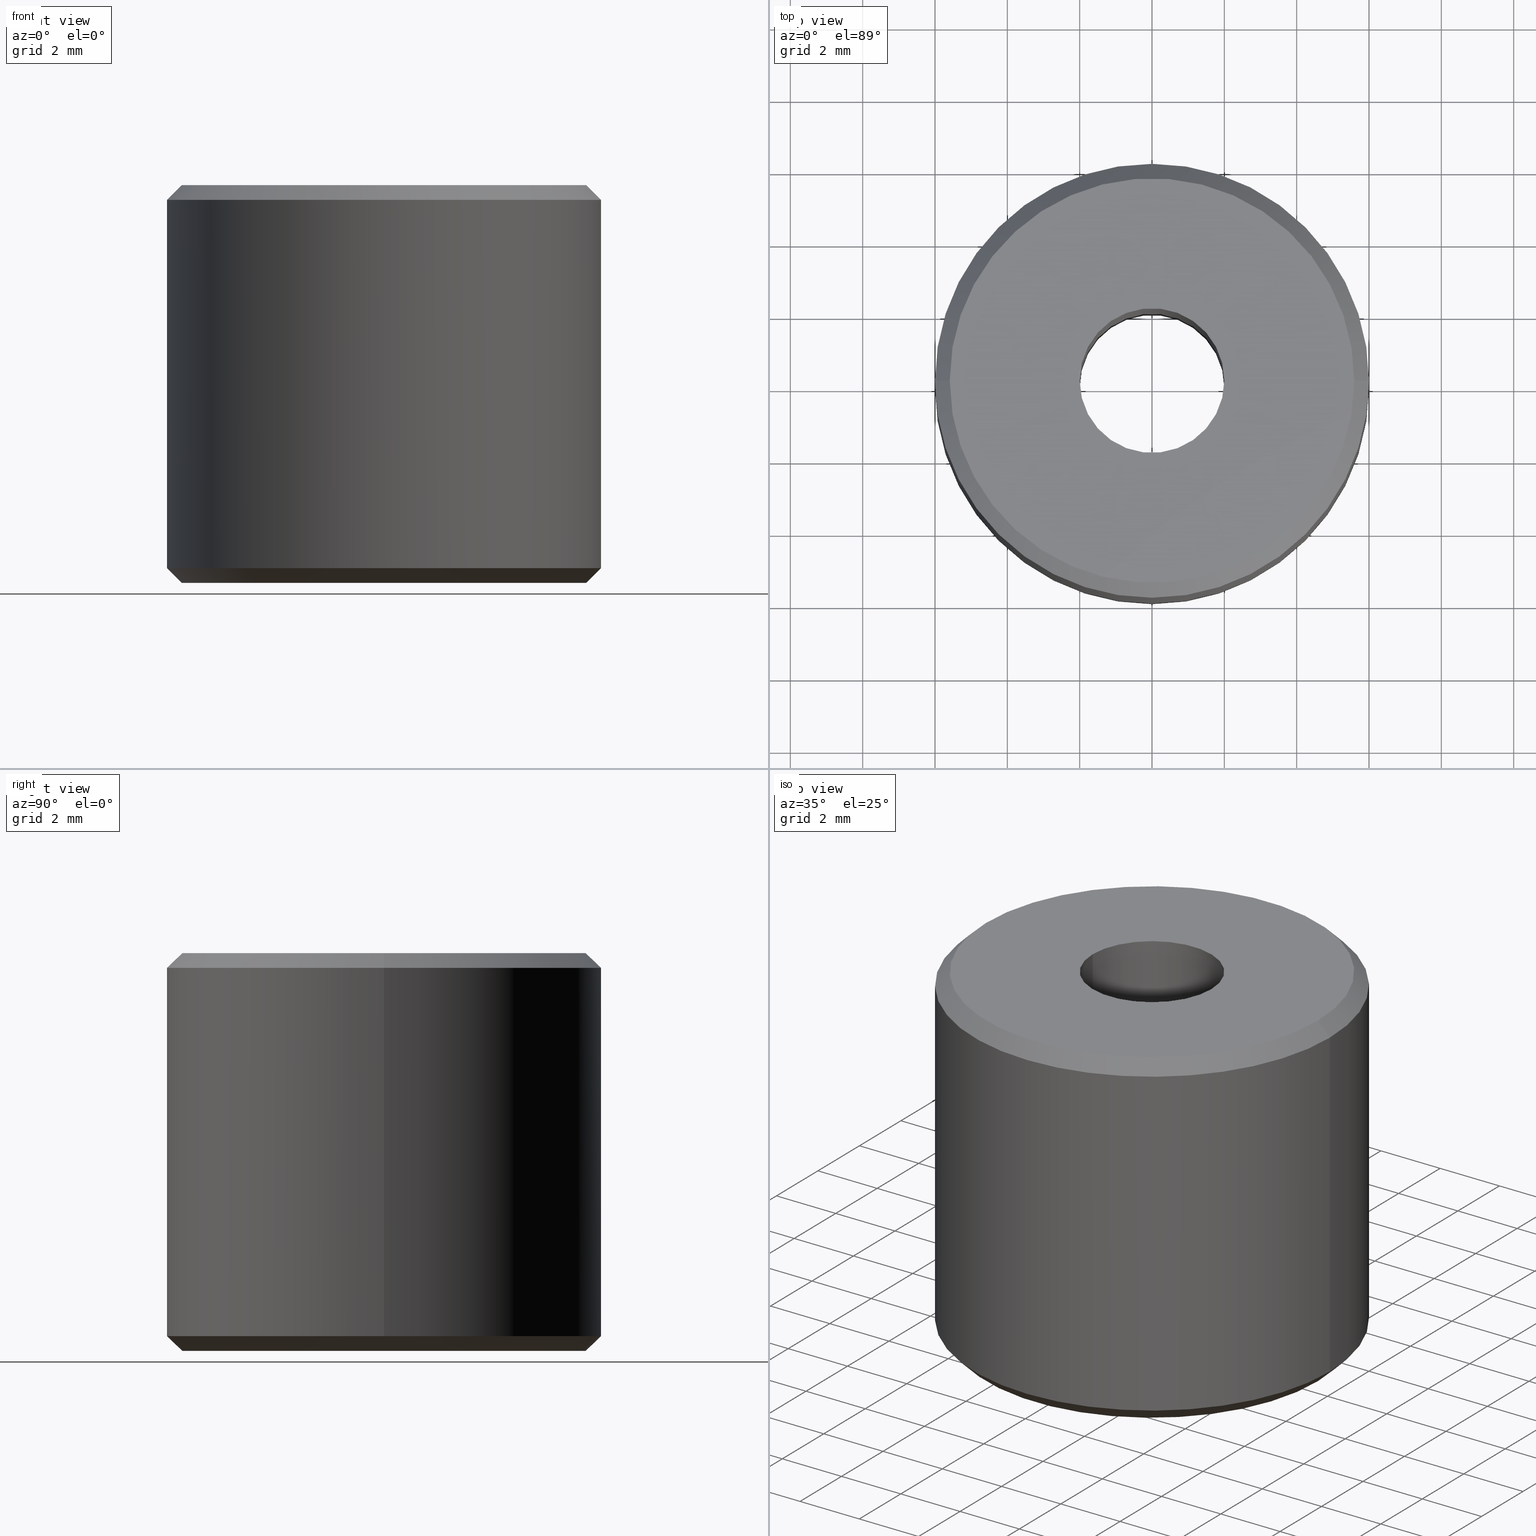
[diagram: canonical four-view strip — front | top / right | iso, engineering-drawing reading convention]
A machine part, canonical four-view strip (front | top / right | iso — engineering-drawing reading convention). The complete STEP part file that produces these views, byte-faithful:
ISO-10303-21;
HEADER;
FILE_DESCRIPTION (( 'STEP AP203' ),
    '1' );
FILE_NAME ('UM ER 8 M.STEP',
    '2019-04-22T08:48:45',
    ( '' ),
    ( '' ),
    'SwSTEP 2.0',
    'SolidWorks 2014',
    '' );
FILE_SCHEMA (( 'CONFIG_CONTROL_DESIGN' ));
ENDSEC;

DATA;
#1 = PERSON_AND_ORGANIZATION ( #21, #81 ) ;
#2 = ORIENTED_EDGE ( 'NONE', *, *, #161, .F. ) ;
#3 = COORDINATED_UNIVERSAL_TIME_OFFSET ( 5, 30, .AHEAD. ) ;
#4 = ORIENTED_EDGE ( 'NONE', *, *, #283, .F. ) ;
#5 = PERSON_AND_ORGANIZATION_ROLE ( 'creator' ) ;
#6 = CYLINDRICAL_SURFACE ( 'NONE', #76, 5.999999999999957400 ) ;
#7 = CARTESIAN_POINT ( 'NONE',  ( 0.0000000000000000000, 0.1111111111113758500, 2.255140518769849200E-013 ) ) ;
#8 = CC_DESIGN_PERSON_AND_ORGANIZATION_ASSIGNMENT ( #205, #5, ( #309 ) ) ;
#9 = ORIENTED_EDGE ( 'NONE', *, *, #254, .T. ) ;
#10 = CARTESIAN_POINT ( 'NONE',  ( 5.999999999999958300, 0.1111111111113758500, 0.4074074074076027300 ) ) ;
#11 = LOCAL_TIME ( 14, 18, 45.00000000000000000, #89 ) ;
#12 = DIRECTION ( 'NONE',  ( -0.0000000000000000000, -0.0000000000000000000, 1.000000000000000000 ) ) ;
#13 = ORIENTED_EDGE ( 'NONE', *, *, #268, .T. ) ;
#14 = ORIENTED_EDGE ( 'NONE', *, *, #251, .T. ) ;
#15 = AXIS2_PLACEMENT_3D ( 'NONE', #292, #231, #308 ) ;
#16 = CIRCLE ( 'NONE', #332, 5.592592592592525900 ) ;
#17 = DIRECTION ( 'NONE',  ( 1.000000000000000000, 0.0000000000000000000, 0.0000000000000000000 ) ) ;
#18 = CARTESIAN_POINT ( 'NONE',  ( 0.0000000000000000000, 5.311472910980680100E-015, 11.00000000000022400 ) ) ;
#19 = EDGE_CURVE ( 'NONE', #286, #39, #337, .T. ) ;
#20 = VERTEX_POINT ( 'NONE', #235 ) ;
#21 = PERSON ( 'UNSPECIFIED', 'UNSPECIFIED', 'UNSPECIFIED', ('UNSPECIFIED'), ('UNSPECIFIED'), ('UNSPECIFIED') ) ;
#22 = EDGE_CURVE ( 'NONE', #114, #288, #195, .T. ) ;
#23 = COORDINATED_UNIVERSAL_TIME_OFFSET ( 5, 30, .AHEAD. ) ;
#24 = CARTESIAN_POINT ( 'NONE',  ( 0.0000000000000000000, 0.1111111111113758500, 2.255140518769849200E-013 ) ) ;
#25 = CC_DESIGN_DATE_AND_TIME_ASSIGNMENT ( #267, #306, ( #309 ) ) ;
#26 = VECTOR ( 'NONE', #225, 1000.000000000000000 ) ;
#27 = DIRECTION ( 'NONE',  ( 0.0000000000000000000, 0.0000000000000000000, 1.000000000000000000 ) ) ;
#28 = ORIENTED_EDGE ( 'NONE', *, *, #143, .F. ) ;
#29 = EDGE_LOOP ( 'NONE', ( #176, #321, #136, #217 ) ) ;
#30 = APPLICATION_CONTEXT ( 'configuration controlled 3d designs of mechanical parts and assemblies' ) ;
#31 = DIRECTION ( 'NONE',  ( -0.0000000000000000000, -0.0000000000000000000, 1.000000000000000000 ) ) ;
#32 = VECTOR ( 'NONE', #98, 1000.000000000000000 ) ;
#33 = CARTESIAN_POINT ( 'NONE',  ( -5.999999999999956500, 0.1111111111113765900, 10.59259259259270700 ) ) ;
#34 = ADVANCED_FACE ( 'NONE', ( #62, #56 ), #45, .F. ) ;
#35 = AXIS2_PLACEMENT_3D ( 'NONE', #91, #202, #64 ) ;
#36 = CARTESIAN_POINT ( 'NONE',  ( 0.0000000000000000000, 0.1111111111113758500, 2.255140518769849200E-013 ) ) ;
#37 = APPROVAL_STATUS ( 'not_yet_approved' ) ;
#38 = FACE_OUTER_BOUND ( 'NONE', #296, .T. ) ;
#39 = VERTEX_POINT ( 'NONE', #10 ) ;
#40 = ADVANCED_FACE ( 'NONE', ( #116, #331 ), #146, .F. ) ;
#41 = PERSON_AND_ORGANIZATION ( #21, #81 ) ;
#42 = DIRECTION ( 'NONE',  ( -0.0000000000000000000, -0.0000000000000000000, 1.000000000000000000 ) ) ;
#43 = EDGE_CURVE ( 'NONE', #206, #39, #44, .T. ) ;
#44 = LINE ( 'NONE', #338, #269 ) ;
#45 = PLANE ( 'NONE',  #165 ) ;
#46 = EDGE_LOOP ( 'NONE', ( #274, #234, #9, #58 ) ) ;
#47 = CARTESIAN_POINT ( 'NONE',  ( 0.0000000000000000000, 0.1111111111113758500, 10.59259259259270700 ) ) ;
#48 = CARTESIAN_POINT ( 'NONE',  ( -5.592592592592581000, 0.1111111111113765600, 2.255140518769849200E-013 ) ) ;
#49 = CARTESIAN_POINT ( 'NONE',  ( 0.0000000000000000000, 0.1111111111113758500, 17.60149317175943700 ) ) ;
#50 = LINE ( 'NONE', #128, #127 ) ;
#51 = DIRECTION ( 'NONE',  ( -0.0000000000000000000, -0.0000000000000000000, 1.000000000000000000 ) ) ;
#52 = ORIENTED_EDGE ( 'NONE', *, *, #43, .F. ) ;
#53 = PRODUCT_DEFINITION_FORMATION_WITH_SPECIFIED_SOURCE ( 'ANY', '', #129, .NOT_KNOWN. ) ;
#54 = DIRECTION ( 'NONE',  ( 1.000000000000000000, 0.0000000000000000000, 0.0000000000000000000 ) ) ;
#55 = COORDINATED_UNIVERSAL_TIME_OFFSET ( 5, 30, .AHEAD. ) ;
#56 = FACE_BOUND ( 'NONE', #339, .T. ) ;
#57 = AXIS2_PLACEMENT_3D ( 'NONE', #36, #166, #169 ) ;
#58 = ORIENTED_EDGE ( 'NONE', *, *, #82, .T. ) ;
#59 = CARTESIAN_POINT ( 'NONE',  ( 0.0000000000000000000, 0.0000000000000000000, 0.0000000000000000000 ) ) ;
#60 = CONICAL_SURFACE ( 'NONE', #35, 5.999999999999958300, 0.7853981633974482800 ) ;
#61 = LOCAL_TIME ( 14, 18, 45.00000000000000000, #131 ) ;
#62 = FACE_OUTER_BOUND ( 'NONE', #240, .T. ) ;
#63 = EDGE_CURVE ( 'NONE', #148, #198, #188, .T. ) ;
#64 = DIRECTION ( 'NONE',  ( 1.000000000000000000, 0.0000000000000000000, 0.0000000000000000000 ) ) ;
#65 = PERSON_AND_ORGANIZATION_ROLE ( 'design_supplier' ) ;
#66 = CARTESIAN_POINT ( 'NONE',  ( 1.999999999999958500, 0.1111111111113758500, 2.255140518769849200E-013 ) ) ;
#67 = APPROVAL ( #37, 'UNSPECIFIED' ) ;
#68 = EDGE_CURVE ( 'NONE', #263, #288, #324, .T. ) ;
#69 = ORIENTED_EDGE ( 'NONE', *, *, #161, .T. ) ;
#70 = ORIENTED_EDGE ( 'NONE', *, *, #336, .T. ) ;
#71 = DIRECTION ( 'NONE',  ( -0.0000000000000000000, -0.0000000000000000000, 1.000000000000000000 ) ) ;
#72 = DIRECTION ( 'NONE',  ( 0.7071067811865474600, 0.0000000000000000000, 0.7071067811865475700 ) ) ;
#73 = MANIFOLD_SOLID_BREP ( 'Revolve1', #227 ) ;
#74 = APPROVAL_DATE_TIME ( #138, #192 ) ;
#75 = DIRECTION ( 'NONE',  ( 0.0000000000000000000, -0.0000000000000000000, 1.000000000000000000 ) ) ;
#76 = AXIS2_PLACEMENT_3D ( 'NONE', #181, #214, #237 ) ;
#77 = DIRECTION ( 'NONE',  ( -0.0000000000000000000, -0.0000000000000000000, 1.000000000000000000 ) ) ;
#78 = DIRECTION ( 'NONE',  ( -0.0000000000000000000, -0.0000000000000000000, 1.000000000000000000 ) ) ;
#79 = DIRECTION ( 'NONE',  ( -1.000000000000000000, 0.0000000000000000000, 0.0000000000000000000 ) ) ;
#80 = CARTESIAN_POINT ( 'NONE',  ( 5.999999999999956500, 0.1111111111113758500, 10.59259259259270700 ) ) ;
#81 = ORGANIZATION ( 'UNSPECIFIED', 'UNSPECIFIED', '' ) ;
#82 = EDGE_CURVE ( 'NONE', #198, #148, #257, .T. ) ;
#83 = APPROVAL_PERSON_ORGANIZATION ( #147, #192, #175 ) ;
#84 = ORIENTED_EDGE ( 'NONE', *, *, #254, .F. ) ;
#85 = CONICAL_SURFACE ( 'NONE', #349, 5.592592592592525900, 0.7853981633973461400 ) ;
#86 = CC_DESIGN_APPROVAL ( #67, ( #53 ) ) ;
#87 = EDGE_CURVE ( 'NONE', #20, #148, #178, .T. ) ;
#88 = ADVANCED_FACE ( 'NONE', ( #243 ), #101, .F. ) ;
#89 = COORDINATED_UNIVERSAL_TIME_OFFSET ( 5, 30, .AHEAD. ) ;
#90 = APPLICATION_CONTEXT ( 'configuration controlled 3d designs of mechanical parts and assemblies' ) ;
#91 = CARTESIAN_POINT ( 'NONE',  ( 0.0000000000000000000, 0.1111111111113758500, 0.4074074074076027300 ) ) ;
#92 = ORIENTED_EDGE ( 'NONE', *, *, #336, .F. ) ;
#93 = DIRECTION ( 'NONE',  ( -0.0000000000000000000, -0.0000000000000000000, 1.000000000000000000 ) ) ;
#94 = FACE_OUTER_BOUND ( 'NONE', #196, .T. ) ;
#95 = AXIS2_PLACEMENT_3D ( 'NONE', #7, #31, #140 ) ;
#96 = CARTESIAN_POINT ( 'NONE',  ( 1.999999999999957100, 0.1111111111113758500, 11.00000000000022600 ) ) ;
#97 = ADVANCED_FACE ( 'NONE', ( #315 ), #158, .T. ) ;
#98 = DIRECTION ( 'NONE',  ( -0.0000000000000000000, -0.0000000000000000000, 1.000000000000000000 ) ) ;
#99 = EDGE_CURVE ( 'NONE', #105, #114, #236, .T. ) ;
#100 = DIRECTION ( 'NONE',  ( -0.0000000000000000000, -0.0000000000000000000, 1.000000000000000000 ) ) ;
#101 = CYLINDRICAL_SURFACE ( 'NONE', #297, 1.999999999999957600 ) ;
#102 = DIRECTION ( 'NONE',  ( 1.000000000000000000, 0.0000000000000000000, 0.0000000000000000000 ) ) ;
#103 = DIRECTION ( 'NONE',  ( 0.0000000000000000000, 0.0000000000000000000, -1.000000000000000000 ) ) ;
#104 = CC_DESIGN_PERSON_AND_ORGANIZATION_ASSIGNMENT ( #41, #199, ( #53 ) ) ;
#105 = VERTEX_POINT ( 'NONE', #186 ) ;
#106 = DIRECTION ( 'NONE',  ( 1.000000000000000000, 0.0000000000000000000, 0.0000000000000000000 ) ) ;
#107 = FACE_OUTER_BOUND ( 'NONE', #29, .T. ) ;
#108 = CARTESIAN_POINT ( 'NONE',  ( -5.999999999999957400, 0.1111111111113765900, 17.60149317175943700 ) ) ;
#109 = AXIS2_PLACEMENT_3D ( 'NONE', #238, #51, #106 ) ;
#110 = VECTOR ( 'NONE', #266, 1000.000000000000000 ) ;
#111 = EDGE_LOOP ( 'NONE', ( #241, #279 ) ) ;
#112 =( NAMED_UNIT ( * ) SI_UNIT ( $, .STERADIAN. ) SOLID_ANGLE_UNIT ( ) );
#113 = APPROVAL_DATE_TIME ( #187, #67 ) ;
#114 = VERTEX_POINT ( 'NONE', #150 ) ;
#115 = AXIS2_PLACEMENT_3D ( 'NONE', #312, #71, #177 ) ;
#116 = FACE_BOUND ( 'NONE', #111, .T. ) ;
#117 = CARTESIAN_POINT ( 'NONE',  ( 5.592592592592581000, 0.1111111111113758500, 2.255140518769849200E-013 ) ) ;
#118 = ORIENTED_EDGE ( 'NONE', *, *, #99, .T. ) ;
#119 = APPROVAL_STATUS ( 'not_yet_approved' ) ;
#120 = CIRCLE ( 'NONE', #109, 5.999999999999956500 ) ;
#121 = CC_DESIGN_PERSON_AND_ORGANIZATION_ASSIGNMENT ( #322, #65, ( #53 ) ) ;
#122 = APPROVAL_PERSON_ORGANIZATION ( #194, #67, #170 ) ;
#123 = VECTOR ( 'NONE', #340, 1000.000000000000000 ) ;
#124 = DIRECTION ( 'NONE',  ( 1.000000000000000000, 0.0000000000000000000, 0.0000000000000000000 ) ) ;
#125 = CARTESIAN_POINT ( 'NONE',  ( 0.0000000000000000000, 0.0000000000000000000, 2.261565403265023200E-013 ) ) ;
#126 = AXIS2_PLACEMENT_3D ( 'NONE', #24, #134, #159 ) ;
#127 = VECTOR ( 'NONE', #290, 1000.000000000000000 ) ;
#128 = CARTESIAN_POINT ( 'NONE',  ( -5.592592592592525900, 0.1111111111113758500, 11.00000000000022200 ) ) ;
#129 = PRODUCT ( 'UM ER 8 M', 'UM ER 8 M', '', ( #193 ) ) ;
#130 = CARTESIAN_POINT ( 'NONE',  ( 0.0000000000000000000, 0.1111111111113758500, 11.00000000000022200 ) ) ;
#131 = COORDINATED_UNIVERSAL_TIME_OFFSET ( 5, 30, .AHEAD. ) ;
#132 = EDGE_LOOP ( 'NONE', ( #28, #185, #13, #301 ) ) ;
#133 = ORIENTED_EDGE ( 'NONE', *, *, #323, .F. ) ;
#134 = DIRECTION ( 'NONE',  ( -0.0000000000000000000, -0.0000000000000000000, 1.000000000000000000 ) ) ;
#135 = SECURITY_CLASSIFICATION ( '', '', #229 ) ;
#136 = ORIENTED_EDGE ( 'NONE', *, *, #304, .T. ) ;
#137 = ORIENTED_EDGE ( 'NONE', *, *, #300, .T. ) ;
#138 = DATE_AND_TIME ( #221, #285 ) ;
#139 = ADVANCED_FACE ( 'NONE', ( #107 ), #298, .T. ) ;
#140 = DIRECTION ( 'NONE',  ( 1.000000000000000000, 0.0000000000000000000, 0.0000000000000000000 ) ) ;
#141 = AXIS2_PLACEMENT_3D ( 'NONE', #153, #261, #293 ) ;
#142 = CARTESIAN_POINT ( 'NONE',  ( 1.999999999999957600, 0.1111111111113758500, 17.60149317175943700 ) ) ;
#143 = EDGE_CURVE ( 'NONE', #114, #105, #16, .T. ) ;
#144 = SHAPE_DEFINITION_REPRESENTATION ( #245, #299 ) ;
#145 = APPROVAL_STATUS ( 'not_yet_approved' ) ;
#146 = PLANE ( 'NONE',  #210 ) ;
#147 = PERSON_AND_ORGANIZATION ( #21, #81 ) ;
#148 = VERTEX_POINT ( 'NONE', #183 ) ;
#149 = CIRCLE ( 'NONE', #15, 5.592592592592581000 ) ;
#150 = CARTESIAN_POINT ( 'NONE',  ( 5.592592592592525900, 0.1111111111113765600, 11.00000000000022200 ) ) ;
#151 = CARTESIAN_POINT ( 'NONE',  ( 0.0000000000000000000, 0.1111111111113758500, 11.00000000000022200 ) ) ;
#152 = ADVANCED_FACE ( 'NONE', ( #168 ), #85, .T. ) ;
#153 = CARTESIAN_POINT ( 'NONE',  ( 0.0000000000000000000, 0.1111111111113758500, 0.4074074074076027300 ) ) ;
#154 = CC_DESIGN_PERSON_AND_ORGANIZATION_ASSIGNMENT ( #249, #277, ( #135 ) ) ;
#155 = DIRECTION ( 'NONE',  ( 1.000000000000000000, 0.0000000000000000000, 0.0000000000000000000 ) ) ;
#156 = EDGE_LOOP ( 'NONE', ( #118, #208 ) ) ;
#157 = EDGE_LOOP ( 'NONE', ( #14, #70, #4, #52 ) ) ;
#158 = CONICAL_SURFACE ( 'NONE', #278, 5.999999999999958300, 0.7853981633974482800 ) ;
#159 = DIRECTION ( 'NONE',  ( 1.000000000000000000, 0.0000000000000000000, 0.0000000000000000000 ) ) ;
#160 = AXIS2_PLACEMENT_3D ( 'NONE', #49, #78, #54 ) ;
#161 = EDGE_CURVE ( 'NONE', #162, #206, #149, .T. ) ;
#162 = VERTEX_POINT ( 'NONE', #48 ) ;
#163 = UNCERTAINTY_MEASURE_WITH_UNIT (LENGTH_MEASURE( 1.000000000000000100E-005 ), #302, 'distance_accuracy_value', 'NONE');
#164 = DIRECTION ( 'NONE',  ( 1.000000000000000000, 0.0000000000000000000, 0.0000000000000000000 ) ) ;
#165 = AXIS2_PLACEMENT_3D ( 'NONE', #125, #75, #209 ) ;
#166 = DIRECTION ( 'NONE',  ( -0.0000000000000000000, -0.0000000000000000000, 1.000000000000000000 ) ) ;
#167 = ADVANCED_FACE ( 'NONE', ( #307 ), #6, .T. ) ;
#168 = FACE_OUTER_BOUND ( 'NONE', #132, .T. ) ;
#169 = DIRECTION ( 'NONE',  ( 1.000000000000000000, 0.0000000000000000000, 0.0000000000000000000 ) ) ;
#170 = APPROVAL_ROLE ( '' ) ;
#171 = LINE ( 'NONE', #244, #26 ) ;
#172 = ORIENTED_EDGE ( 'NONE', *, *, #268, .F. ) ;
#173 = CC_DESIGN_DATE_AND_TIME_ASSIGNMENT ( #226, #310, ( #135 ) ) ;
#174 = EDGE_CURVE ( 'NONE', #275, #20, #252, .T. ) ;
#175 = APPROVAL_ROLE ( '' ) ;
#176 = ORIENTED_EDGE ( 'NONE', *, *, #22, .F. ) ;
#177 = DIRECTION ( 'NONE',  ( 1.000000000000000000, 0.0000000000000000000, 0.0000000000000000000 ) ) ;
#178 = LINE ( 'NONE', #180, #32 ) ;
#179 = CARTESIAN_POINT ( 'NONE',  ( 5.592592592592525900, 0.1111111111113765500, 11.00000000000022200 ) ) ;
#180 = CARTESIAN_POINT ( 'NONE',  ( -1.999999999999957600, 0.1111111111113761000, 17.60149317175943700 ) ) ;
#181 = CARTESIAN_POINT ( 'NONE',  ( 0.0000000000000000000, 0.1111111111113758500, 17.60149317175943700 ) ) ;
#182 = DIRECTION ( 'NONE',  ( -0.0000000000000000000, -0.0000000000000000000, 1.000000000000000000 ) ) ;
#183 = CARTESIAN_POINT ( 'NONE',  ( -1.999999999999957100, 0.1111111111113761000, 11.00000000000022600 ) ) ;
#184 = LINE ( 'NONE', #108, #246 ) ;
#185 = ORIENTED_EDGE ( 'NONE', *, *, #22, .T. ) ;
#186 = CARTESIAN_POINT ( 'NONE',  ( -5.592592592592525900, 0.1111111111113758500, 11.00000000000022200 ) ) ;
#187 = DATE_AND_TIME ( #255, #329 ) ;
#188 = CIRCLE ( 'NONE', #189, 1.999999999999957100 ) ;
#189 = AXIS2_PLACEMENT_3D ( 'NONE', #313, #211, #124 ) ;
#190 = LINE ( 'NONE', #318, #110 ) ;
#191 = EDGE_LOOP ( 'NONE', ( #311, #347, #137, #348 ) ) ;
#192 = APPROVAL ( #145, 'UNSPECIFIED' ) ;
#193 = MECHANICAL_CONTEXT ( 'NONE', #90, 'mechanical' ) ;
#194 = PERSON_AND_ORGANIZATION ( #21, #81 ) ;
#195 = LINE ( 'NONE', #179, #123 ) ;
#196 = EDGE_LOOP ( 'NONE', ( #92, #69, #294, #247 ) ) ;
#197 = ADVANCED_FACE ( 'NONE', ( #94 ), #60, .T. ) ;
#198 = VERTEX_POINT ( 'NONE', #96 ) ;
#199 = PERSON_AND_ORGANIZATION_ROLE ( 'creator' ) ;
#200 =( GEOMETRIC_REPRESENTATION_CONTEXT ( 3 ) GLOBAL_UNCERTAINTY_ASSIGNED_CONTEXT ( ( #163 ) ) GLOBAL_UNIT_ASSIGNED_CONTEXT ( ( #302, #303, #112 ) ) REPRESENTATION_CONTEXT ( 'NONE', 'WORKASPACE' ) );
#201 = CIRCLE ( 'NONE', #95, 5.592592592592581000 ) ;
#202 = DIRECTION ( 'NONE',  ( -0.0000000000000000000, -0.0000000000000000000, 1.000000000000000000 ) ) ;
#203 = APPLICATION_PROTOCOL_DEFINITION ( 'international standard', 'config_control_design', 1994, #30 ) ;
#204 = ORIENTED_EDGE ( 'NONE', *, *, #174, .T. ) ;
#205 = PERSON_AND_ORGANIZATION ( #21, #81 ) ;
#206 = VERTEX_POINT ( 'NONE', #117 ) ;
#207 = ORIENTED_EDGE ( 'NONE', *, *, #300, .F. ) ;
#208 = ORIENTED_EDGE ( 'NONE', *, *, #143, .T. ) ;
#209 = DIRECTION ( 'NONE',  ( 1.000000000000000000, 0.0000000000000000000, 0.0000000000000000000 ) ) ;
#210 = AXIS2_PLACEMENT_3D ( 'NONE', #18, #341, #258 ) ;
#211 = DIRECTION ( 'NONE',  ( -0.0000000000000000000, -0.0000000000000000000, 1.000000000000000000 ) ) ;
#212 = DIRECTION ( 'NONE',  ( -1.000000000000000000, 0.0000000000000000000, 0.0000000000000000000 ) ) ;
#213 = CARTESIAN_POINT ( 'NONE',  ( 0.0000000000000000000, 0.1111111111113758500, 0.4074074074076027300 ) ) ;
#214 = DIRECTION ( 'NONE',  ( -0.0000000000000000000, -0.0000000000000000000, 1.000000000000000000 ) ) ;
#215 = DIRECTION ( 'NONE',  ( -0.0000000000000000000, -0.0000000000000000000, 1.000000000000000000 ) ) ;
#216 = CC_DESIGN_APPROVAL ( #192, ( #135 ) ) ;
#217 = ORIENTED_EDGE ( 'NONE', *, *, #68, .T. ) ;
#218 = APPROVAL_PERSON_ORGANIZATION ( #281, #326, #232 ) ;
#219 = ORIENTED_EDGE ( 'NONE', *, *, #251, .F. ) ;
#220 = DESIGN_CONTEXT ( 'detailed design', #30, 'design' ) ;
#221 = CALENDAR_DATE ( 2019, 22, 4 ) ;
#222 = DIRECTION ( 'NONE',  ( -0.0000000000000000000, -0.0000000000000000000, 1.000000000000000000 ) ) ;
#223 = AXIS2_PLACEMENT_3D ( 'NONE', #328, #224, #325 ) ;
#224 = DIRECTION ( 'NONE',  ( -0.0000000000000000000, -0.0000000000000000000, 1.000000000000000000 ) ) ;
#225 = DIRECTION ( 'NONE',  ( -0.7071067811865474600, 8.659560562354931600E-017, 0.7071067811865475700 ) ) ;
#226 = DATE_AND_TIME ( #295, #11 ) ;
#227 = CLOSED_SHELL ( 'NONE', ( #97, #88, #152, #334, #167, #139, #40, #280, #34, #197 ) ) ;
#228 = AXIS2_PLACEMENT_3D ( 'NONE', #47, #42, #102 ) ;
#229 = SECURITY_CLASSIFICATION_LEVEL ( 'unclassified' ) ;
#230 = LOCAL_TIME ( 14, 18, 45.00000000000000000, #23 ) ;
#231 = DIRECTION ( 'NONE',  ( -0.0000000000000000000, -0.0000000000000000000, 1.000000000000000000 ) ) ;
#232 = APPROVAL_ROLE ( '' ) ;
#233 = CC_DESIGN_SECURITY_CLASSIFICATION ( #135, ( #53 ) ) ;
#234 = ORIENTED_EDGE ( 'NONE', *, *, #174, .F. ) ;
#235 = CARTESIAN_POINT ( 'NONE',  ( -1.999999999999958500, 0.1111111111113761000, 2.255140518769849200E-013 ) ) ;
#236 = CIRCLE ( 'NONE', #259, 5.592592592592525900 ) ;
#237 = DIRECTION ( 'NONE',  ( 1.000000000000000000, 0.0000000000000000000, 0.0000000000000000000 ) ) ;
#238 = CARTESIAN_POINT ( 'NONE',  ( 0.0000000000000000000, 0.1111111111113758500, 10.59259259259270700 ) ) ;
#239 = CYLINDRICAL_SURFACE ( 'NONE', #223, 5.999999999999957400 ) ;
#240 = EDGE_LOOP ( 'NONE', ( #219, #2 ) ) ;
#241 = ORIENTED_EDGE ( 'NONE', *, *, #82, .F. ) ;
#242 = AXIS2_PLACEMENT_3D ( 'NONE', #260, #12, #317 ) ;
#243 = FACE_OUTER_BOUND ( 'NONE', #282, .T. ) ;
#244 = CARTESIAN_POINT ( 'NONE',  ( -5.999999999999958300, 0.1111111111113765900, 0.4074074074076027300 ) ) ;
#245 = PRODUCT_DEFINITION_SHAPE ( 'NONE', 'NONE',  #309 ) ;
#246 = VECTOR ( 'NONE', #222, 1000.000000000000000 ) ;
#247 = ORIENTED_EDGE ( 'NONE', *, *, #19, .F. ) ;
#248 = PRODUCT_RELATED_PRODUCT_CATEGORY ( 'detail', '', ( #129 ) ) ;
#249 = PERSON_AND_ORGANIZATION ( #21, #81 ) ;
#250 = APPLICATION_PROTOCOL_DEFINITION ( 'international standard', 'config_control_design', 1994, #90 ) ;
#251 = EDGE_CURVE ( 'NONE', #206, #162, #201, .T. ) ;
#252 = CIRCLE ( 'NONE', #57, 1.999999999999958500 ) ;
#253 = CYLINDRICAL_SURFACE ( 'NONE', #160, 1.999999999999957600 ) ;
#254 = EDGE_CURVE ( 'NONE', #275, #198, #271, .T. ) ;
#255 = CALENDAR_DATE ( 2019, 22, 4 ) ;
#256 = CARTESIAN_POINT ( 'NONE',  ( 0.0000000000000000000, 0.1111111111113758500, 17.60149317175943700 ) ) ;
#257 = CIRCLE ( 'NONE', #242, 1.999999999999957100 ) ;
#258 = DIRECTION ( 'NONE',  ( -1.000000000000000000, 0.0000000000000000000, -0.0000000000000000000 ) ) ;
#259 = AXIS2_PLACEMENT_3D ( 'NONE', #130, #215, #155 ) ;
#260 = CARTESIAN_POINT ( 'NONE',  ( 0.0000000000000000000, 0.1111111111113758500, 11.00000000000022600 ) ) ;
#261 = DIRECTION ( 'NONE',  ( -0.0000000000000000000, -0.0000000000000000000, 1.000000000000000000 ) ) ;
#262 = VECTOR ( 'NONE', #93, 1000.000000000000000 ) ;
#263 = VERTEX_POINT ( 'NONE', #33 ) ;
#264 = CARTESIAN_POINT ( 'NONE',  ( -5.999999999999959100, 0.1111111111113765900, 0.4074074074076027300 ) ) ;
#265 = CARTESIAN_POINT ( 'NONE',  ( 0.0000000000000000000, 0.1111111111113758500, 11.00000000000022200 ) ) ;
#266 = DIRECTION ( 'NONE',  ( -0.0000000000000000000, -0.0000000000000000000, 1.000000000000000000 ) ) ;
#267 = DATE_AND_TIME ( #335, #61 ) ;
#268 = EDGE_CURVE ( 'NONE', #288, #263, #120, .T. ) ;
#269 = VECTOR ( 'NONE', #72, 1000.000000000000000 ) ;
#270 = ORIENTED_EDGE ( 'NONE', *, *, #319, .T. ) ;
#271 = LINE ( 'NONE', #142, #262 ) ;
#272 = AXIS2_PLACEMENT_3D ( 'NONE', #59, #27, #164 ) ;
#273 = APPROVAL_DATE_TIME ( #344, #326 ) ;
#274 = ORIENTED_EDGE ( 'NONE', *, *, #87, .F. ) ;
#275 = VERTEX_POINT ( 'NONE', #66 ) ;
#276 = ORIENTED_EDGE ( 'NONE', *, *, #283, .T. ) ;
#277 = PERSON_AND_ORGANIZATION_ROLE ( 'classification_officer' ) ;
#278 = AXIS2_PLACEMENT_3D ( 'NONE', #213, #100, #284 ) ;
#279 = ORIENTED_EDGE ( 'NONE', *, *, #63, .F. ) ;
#280 = ADVANCED_FACE ( 'NONE', ( #333 ), #253, .F. ) ;
#281 = PERSON_AND_ORGANIZATION ( #21, #81 ) ;
#282 = EDGE_LOOP ( 'NONE', ( #133, #305, #314, #84 ) ) ;
#283 = EDGE_CURVE ( 'NONE', #39, #286, #327, .T. ) ;
#284 = DIRECTION ( 'NONE',  ( 1.000000000000000000, 0.0000000000000000000, 0.0000000000000000000 ) ) ;
#285 = LOCAL_TIME ( 14, 18, 45.00000000000000000, #3 ) ;
#286 = VERTEX_POINT ( 'NONE', #264 ) ;
#287 = DIRECTION ( 'NONE',  ( 1.000000000000000000, 0.0000000000000000000, 0.0000000000000000000 ) ) ;
#288 = VERTEX_POINT ( 'NONE', #80 ) ;
#289 = DIRECTION ( 'NONE',  ( 0.0000000000000000000, 0.0000000000000000000, -1.000000000000000000 ) ) ;
#290 = DIRECTION ( 'NONE',  ( -0.7071067811864753000, 0.0000000000000000000, -0.7071067811866197400 ) ) ;
#291 = CC_DESIGN_PERSON_AND_ORGANIZATION_ASSIGNMENT ( #1, #330, ( #129 ) ) ;
#292 = CARTESIAN_POINT ( 'NONE',  ( 0.0000000000000000000, 0.1111111111113758500, 2.255140518769849200E-013 ) ) ;
#293 = DIRECTION ( 'NONE',  ( 1.000000000000000000, 0.0000000000000000000, 0.0000000000000000000 ) ) ;
#294 = ORIENTED_EDGE ( 'NONE', *, *, #43, .T. ) ;
#295 = CALENDAR_DATE ( 2019, 22, 4 ) ;
#296 = EDGE_LOOP ( 'NONE', ( #276, #270, #172, #207 ) ) ;
#297 = AXIS2_PLACEMENT_3D ( 'NONE', #256, #182, #287 ) ;
#298 = CONICAL_SURFACE ( 'NONE', #316, 5.592592592592525900, 0.7853981633973461400 ) ;
#299 = ADVANCED_BREP_SHAPE_REPRESENTATION ( 'UM ER 8 M', ( #73, #272 ), #200 ) ;
#300 = EDGE_CURVE ( 'NONE', #39, #288, #190, .T. ) ;
#301 = ORIENTED_EDGE ( 'NONE', *, *, #304, .F. ) ;
#302 =( LENGTH_UNIT ( ) NAMED_UNIT ( * ) SI_UNIT ( .MILLI., .METRE. ) );
#303 =( NAMED_UNIT ( * ) PLANE_ANGLE_UNIT ( ) SI_UNIT ( $, .RADIAN. ) );
#304 = EDGE_CURVE ( 'NONE', #105, #263, #50, .T. ) ;
#305 = ORIENTED_EDGE ( 'NONE', *, *, #87, .T. ) ;
#306 = DATE_TIME_ROLE ( 'creation_date' ) ;
#307 = FACE_OUTER_BOUND ( 'NONE', #191, .T. ) ;
#308 = DIRECTION ( 'NONE',  ( 1.000000000000000000, 0.0000000000000000000, 0.0000000000000000000 ) ) ;
#309 = PRODUCT_DEFINITION ( 'UNKNOWN', '', #53, #220 ) ;
#310 = DATE_TIME_ROLE ( 'classification_date' ) ;
#311 = ORIENTED_EDGE ( 'NONE', *, *, #319, .F. ) ;
#312 = CARTESIAN_POINT ( 'NONE',  ( 0.0000000000000000000, 0.1111111111113758500, 0.4074074074076027300 ) ) ;
#313 = CARTESIAN_POINT ( 'NONE',  ( 0.0000000000000000000, 0.1111111111113758500, 11.00000000000022600 ) ) ;
#314 = ORIENTED_EDGE ( 'NONE', *, *, #63, .T. ) ;
#315 = FACE_OUTER_BOUND ( 'NONE', #157, .T. ) ;
#316 = AXIS2_PLACEMENT_3D ( 'NONE', #345, #289, #212 ) ;
#317 = DIRECTION ( 'NONE',  ( 1.000000000000000000, 0.0000000000000000000, 0.0000000000000000000 ) ) ;
#318 = CARTESIAN_POINT ( 'NONE',  ( 5.999999999999957400, 0.1111111111113758500, 17.60149317175943700 ) ) ;
#319 = EDGE_CURVE ( 'NONE', #286, #263, #184, .T. ) ;
#320 = CIRCLE ( 'NONE', #126, 1.999999999999958500 ) ;
#321 = ORIENTED_EDGE ( 'NONE', *, *, #99, .F. ) ;
#322 = PERSON_AND_ORGANIZATION ( #21, #81 ) ;
#323 = EDGE_CURVE ( 'NONE', #20, #275, #320, .T. ) ;
#324 = CIRCLE ( 'NONE', #228, 5.999999999999956500 ) ;
#325 = DIRECTION ( 'NONE',  ( 1.000000000000000000, 0.0000000000000000000, 0.0000000000000000000 ) ) ;
#326 = APPROVAL ( #119, 'UNSPECIFIED' ) ;
#327 = CIRCLE ( 'NONE', #141, 5.999999999999958300 ) ;
#328 = CARTESIAN_POINT ( 'NONE',  ( 0.0000000000000000000, 0.1111111111113758500, 17.60149317175943700 ) ) ;
#329 = LOCAL_TIME ( 14, 18, 45.00000000000000000, #55 ) ;
#330 = PERSON_AND_ORGANIZATION_ROLE ( 'design_owner' ) ;
#331 = FACE_OUTER_BOUND ( 'NONE', #156, .T. ) ;
#332 = AXIS2_PLACEMENT_3D ( 'NONE', #151, #77, #17 ) ;
#333 = FACE_OUTER_BOUND ( 'NONE', #46, .T. ) ;
#334 = ADVANCED_FACE ( 'NONE', ( #38 ), #239, .T. ) ;
#335 = CALENDAR_DATE ( 2019, 22, 4 ) ;
#336 = EDGE_CURVE ( 'NONE', #162, #286, #171, .T. ) ;
#337 = CIRCLE ( 'NONE', #115, 5.999999999999958300 ) ;
#338 = CARTESIAN_POINT ( 'NONE',  ( 5.999999999999958300, 0.1111111111113758500, 0.4074074074076027300 ) ) ;
#339 = EDGE_LOOP ( 'NONE', ( #204, #343 ) ) ;
#340 = DIRECTION ( 'NONE',  ( 0.7071067811864753000, 8.659560562354047900E-017, -0.7071067811866197400 ) ) ;
#341 = DIRECTION ( 'NONE',  ( 0.0000000000000000000, 0.0000000000000000000, -1.000000000000000000 ) ) ;
#342 = CC_DESIGN_APPROVAL ( #326, ( #309 ) ) ;
#343 = ORIENTED_EDGE ( 'NONE', *, *, #323, .T. ) ;
#344 = DATE_AND_TIME ( #346, #230 ) ;
#345 = CARTESIAN_POINT ( 'NONE',  ( 0.0000000000000000000, 0.1111111111113758500, 11.00000000000022200 ) ) ;
#346 = CALENDAR_DATE ( 2019, 22, 4 ) ;
#347 = ORIENTED_EDGE ( 'NONE', *, *, #19, .T. ) ;
#348 = ORIENTED_EDGE ( 'NONE', *, *, #68, .F. ) ;
#349 = AXIS2_PLACEMENT_3D ( 'NONE', #265, #103, #79 ) ;
ENDSEC;
END-ISO-10303-21;
